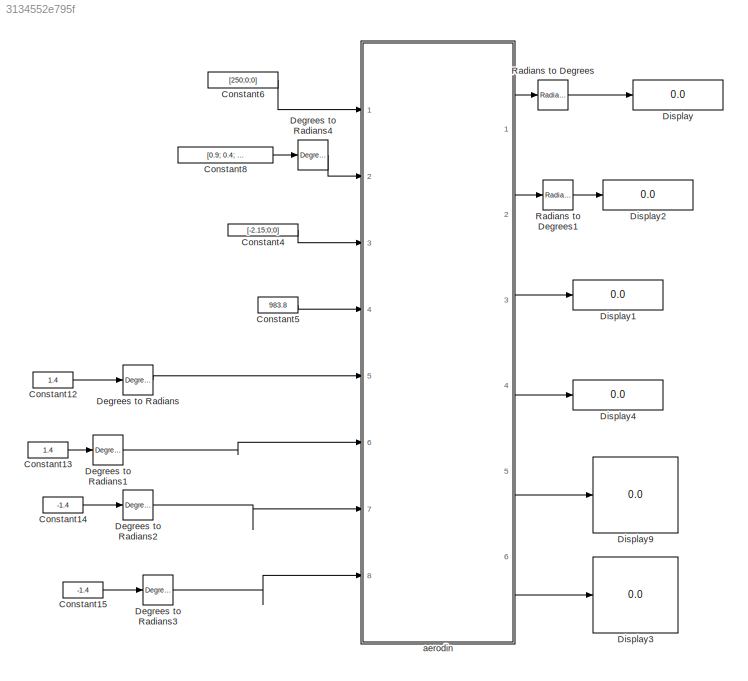
MODEL slx_3134552e795f
KIND model
BLOCK [Constant] Constant12
  Value = 1.4
BLOCK [Constant] Constant13
  Value = 1.4
BLOCK [Constant] Constant14
  Value = -1.4
BLOCK [Constant] Constant15
  Value = -1.4
BLOCK [Constant] Constant4
  Value = [-2.15;0;0]
BLOCK [Constant] Constant5
  Value = 983.8
BLOCK [Constant] Constant6
  Value = [250;0;0]
BLOCK [Constant] Constant8
  Value = [0.9; 0.4; 0.5]
BLOCK [Reference] Degrees to Radians  REF=simulink_extras/Transformations/Degrees to
Radians
  Ports = [1, 1]
  SourceBlock = simulink_extras/Transformations/Degrees to\nRadians
  SourceType = DegreesToRadians
BLOCK [Reference] Degrees to Radians1  REF=simulink_extras/Transformations/Degrees to
Radians
  Ports = [1, 1]
  SourceBlock = simulink_extras/Transformations/Degrees to\nRadians
  SourceType = DegreesToRadians
BLOCK [Reference] Degrees to Radians2  REF=simulink_extras/Transformations/Degrees to
Radians
  Ports = [1, 1]
  SourceBlock = simulink_extras/Transformations/Degrees to\nRadians
  SourceType = DegreesToRadians
BLOCK [Reference] Degrees to Radians3  REF=simulink_extras/Transformations/Degrees to
Radians
  Ports = [1, 1]
  SourceBlock = simulink_extras/Transformations/Degrees to\nRadians
  SourceType = DegreesToRadians
BLOCK [Reference] Degrees to Radians4  REF=simulink_extras/Transformations/Degrees to
Radians
  Ports = [1, 1]
  SourceBlock = simulink_extras/Transformations/Degrees to\nRadians
  SourceType = DegreesToRadians
BLOCK [Display] Display
  Decimation = 1
  Lockdown = off
  Ports = [1]
BLOCK [Display] Display1
  Decimation = 1
  Lockdown = off
  Ports = [1]
BLOCK [Display] Display2
  Decimation = 1
  Lockdown = off
  Ports = [1]
BLOCK [Display] Display3
  Decimation = 1
  Lockdown = off
  Ports = [1]
BLOCK [Display] Display4
  Decimation = 1
  Lockdown = off
  Ports = [1]
BLOCK [Display] Display9
  Decimation = 1
  Lockdown = off
  Ports = [1]
BLOCK [Reference] Radians to Degrees  REF=simulink_extras/Transformations/Radians
to Degrees
  Ports = [1, 1]
  SourceBlock = simulink_extras/Transformations/Radians\nto Degrees
  SourceType = RadiansToDegrees
BLOCK [Reference] Radians to Degrees1  REF=simulink_extras/Transformations/Radians
to Degrees
  Ports = [1, 1]
  SourceBlock = simulink_extras/Transformations/Radians\nto Degrees
  SourceType = RadiansToDegrees
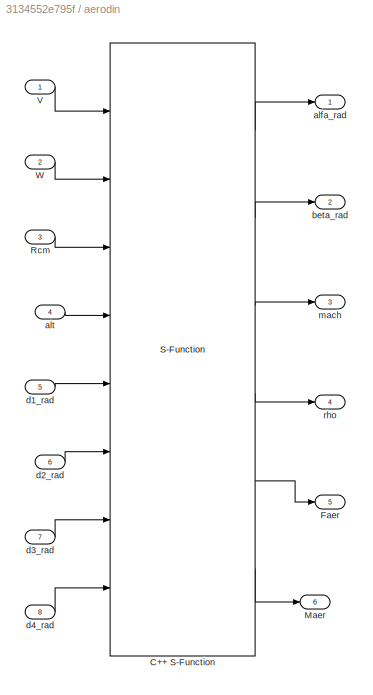
BLOCK [SubSystem] aerodin
  FunctionWithSeparateData = off
  MaskHideContents = off
  MinAlgLoopOccurrences = off
  Opaque = off
  Ports = [8, 6]
  PropExecContextOutsideSubsystem = off
  RTWSystemCode = Auto
  RequestExecContextInheritance = off
  TreatAsAtomicUnit = on
BLOCK [S-Function] aerodin/C++ S-Function
  EnableBusSupport = off
  FunctionName = aer_cruz_sf
  Ports = [8, 6]
BLOCK [Outport] aerodin/Faer
  IconDisplay = Port number
  Port = 5
BLOCK [Outport] aerodin/Maer
  IconDisplay = Port number
  Port = 6
BLOCK [Inport] aerodin/Rcm
  IconDisplay = Port number
  Port = 3
BLOCK [Inport] aerodin/V
  IconDisplay = Port number
BLOCK [Inport] aerodin/W
  IconDisplay = Port number
  Port = 2
BLOCK [Outport] aerodin/alfa_rad
  IconDisplay = Port number
BLOCK [Inport] aerodin/alt
  IconDisplay = Port number
  Port = 4
BLOCK [Outport] aerodin/beta_rad
  IconDisplay = Port number
  Port = 2
BLOCK [Inport] aerodin/d1_rad
  IconDisplay = Port number
  Port = 5
BLOCK [Inport] aerodin/d2_rad
  IconDisplay = Port number
  Port = 6
BLOCK [Inport] aerodin/d3_rad
  IconDisplay = Port number
  Port = 7
BLOCK [Inport] aerodin/d4_rad
  IconDisplay = Port number
  Port = 8
BLOCK [Outport] aerodin/mach
  IconDisplay = Port number
  Port = 3
BLOCK [Outport] aerodin/rho
  IconDisplay = Port number
  Port = 4
LINE Constant12:1 -> Degrees to Radians:1
LINE Constant13:1 -> Degrees to Radians1:1
LINE Constant14:1 -> Degrees to Radians2:1
LINE Constant15:1 -> Degrees to Radians3:1
LINE Constant4:1 -> aerodin:3
LINE Constant5:1 -> aerodin:4
LINE Constant6:1 -> aerodin:1
LINE Constant8:1 -> Degrees to Radians4:1
LINE Degrees to Radians1:1 -> aerodin:6
LINE Degrees to Radians2:1 -> aerodin:7
LINE Degrees to Radians3:1 -> aerodin:8
LINE Degrees to Radians4:1 -> aerodin:2
LINE Degrees to Radians:1 -> aerodin:5
LINE Radians to Degrees1:1 -> Display2:1
LINE Radians to Degrees:1 -> Display:1
LINE aerodin/C++ S-Function:1 -> aerodin/alfa_rad:1
LINE aerodin/C++ S-Function:2 -> aerodin/beta_rad:1
LINE aerodin/C++ S-Function:3 -> aerodin/mach:1
LINE aerodin/C++ S-Function:4 -> aerodin/rho:1
LINE aerodin/C++ S-Function:5 -> aerodin/Faer:1
LINE aerodin/C++ S-Function:6 -> aerodin/Maer:1
LINE aerodin/Rcm:1 -> aerodin/C++ S-Function:3
LINE aerodin/V:1 -> aerodin/C++ S-Function:1
LINE aerodin/W:1 -> aerodin/C++ S-Function:2
LINE aerodin/alt:1 -> aerodin/C++ S-Function:4
LINE aerodin/d1_rad:1 -> aerodin/C++ S-Function:5
LINE aerodin/d2_rad:1 -> aerodin/C++ S-Function:6
LINE aerodin/d3_rad:1 -> aerodin/C++ S-Function:7
LINE aerodin/d4_rad:1 -> aerodin/C++ S-Function:8
LINE aerodin:1 -> Radians to Degrees:1
LINE aerodin:2 -> Radians to Degrees1:1
LINE aerodin:3 -> Display1:1
LINE aerodin:4 -> Display4:1
LINE aerodin:5 -> Display9:1
LINE aerodin:6 -> Display3:1
